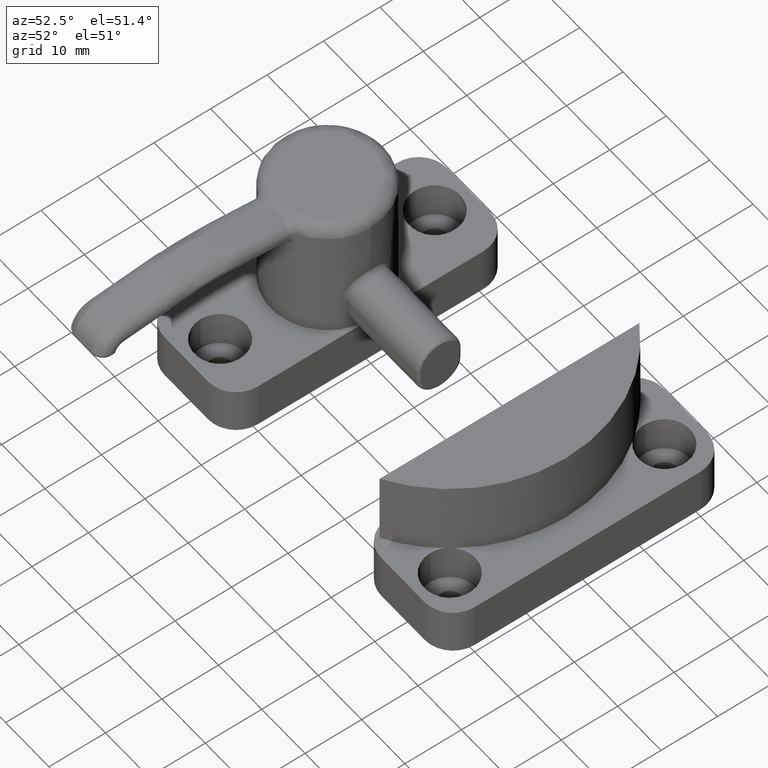
[diagram: clean part render]
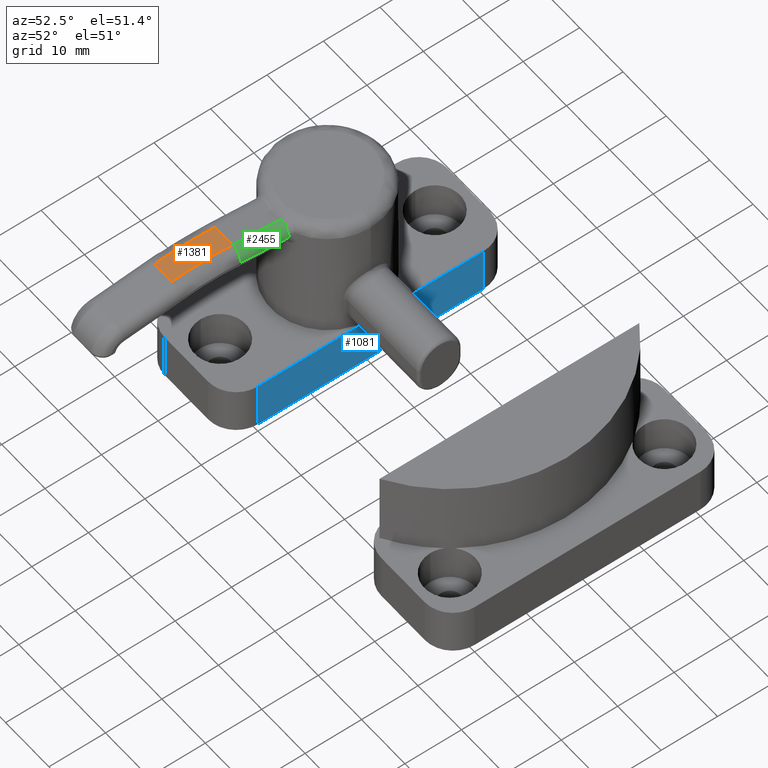
[diagram: same view with three faces highlighted in distinct colors, each labeled with its STEP entity id]
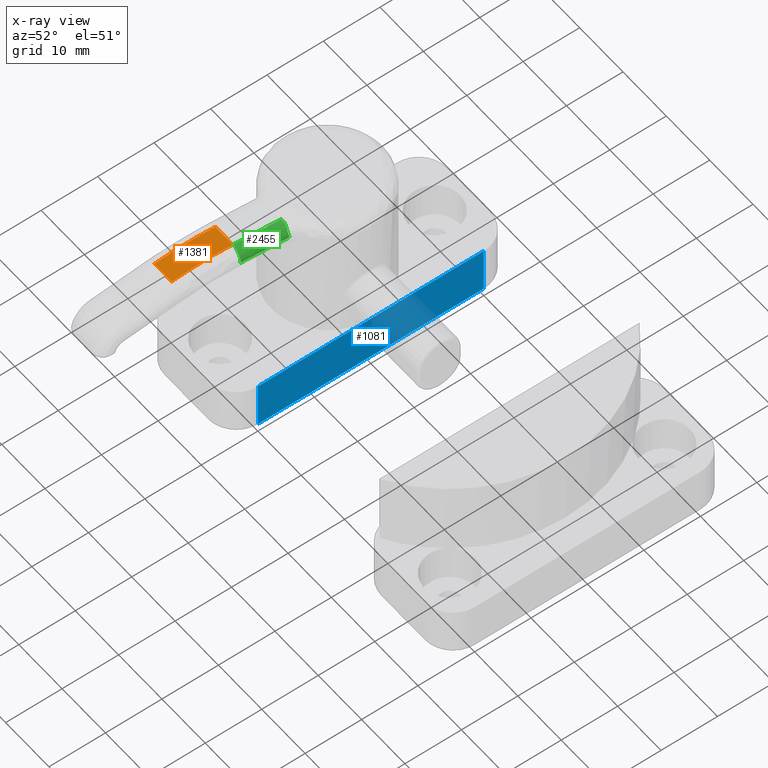
[diagram: x-ray of the same camera — body ghosted, the three highlighted faces saturated]
A machine part, auxiliary view with three faces highlighted in distinct colors.
The next image is the same camera in x-ray (body ghosted, the three faces saturated) — at least one of them is partly hidden behind the body in this view.
Their STEP definitions:

[orange] entity #1381 — the highlighted cylindrical surface (partial cylindrical patch) has radius 51.5 mm, axis along (-1, 0, 0).
#1340=CARTESIAN_POINT('',(12.000000009999912,-23.289700995617579,-20.063151708218605));
#1341=DIRECTION('',(-1.0,1.224647E-016,1.925930E-034));
#1342=DIRECTION('',(9.757211E-019,0.007967367278950,-0.999968260025608));
#1343=AXIS2_PLACEMENT_3D('',#1340,#1341,#1342);
#1344=CYLINDRICAL_SURFACE('',#1343,51.500000000000000);
#1345=CARTESIAN_POINT('',(11.999999999999911,-29.097492164159291,31.108320439283752));
#1346=VERTEX_POINT('',#1345);
#1347=CARTESIAN_POINT('',(7.999999999999911,-29.097492164159291,31.108320439283752));
#1348=VERTEX_POINT('',#1347);
#1349=CARTESIAN_POINT('',(11.999999999999911,-29.097492164159291,31.108320439283755));
#1350=DIRECTION('',(-1.0,0.0,0.0));
#1351=VECTOR('',#1350,4.0);
#1352=LINE('',#1349,#1351);
#1353=EDGE_CURVE('',#1346,#1348,#1352,.T.);
#1354=ORIENTED_EDGE('',*,*,#1353,.F.);
#1355=CARTESIAN_POINT('',(11.999999999999913,-18.298025116656817,31.194366490767614));
#1356=VERTEX_POINT('',#1355);
#1357=CARTESIAN_POINT('',(11.999999999999911,-23.289700995617579,-20.063151708218605));
#1358=DIRECTION('',(-1.0,1.224647E-016,-1.540744E-033));
#1359=DIRECTION('',(-1.381067E-017,-0.112772644049354,0.993620818398104));
#1360=AXIS2_PLACEMENT_3D('',#1357,#1358,#1359);
#1361=CIRCLE('',#1360,51.500000000000000);
#1362=EDGE_CURVE('',#1346,#1356,#1361,.T.);
#1363=ORIENTED_EDGE('',*,*,#1362,.T.);
#1364=CARTESIAN_POINT('',(7.999999999999912,-18.298025116656817,31.194366490767614));
#1365=VERTEX_POINT('',#1364);
#1366=CARTESIAN_POINT('',(11.999999999999913,-18.298025116656817,31.194366490767599));
#1367=DIRECTION('',(-1.0,0.0,0.0));
#1368=VECTOR('',#1367,4.0);
#1369=LINE('',#1366,#1368);
#1370=EDGE_CURVE('',#1356,#1365,#1369,.T.);
#1371=ORIENTED_EDGE('',*,*,#1370,.T.);
#1372=CARTESIAN_POINT('',(7.999999999999912,-23.289700995617579,-20.063151708218605));
#1373=DIRECTION('',(-1.0,1.224647E-016,-1.540744E-033));
#1374=DIRECTION('',(-1.381067E-017,-0.112772644049354,0.993620818398104));
#1375=AXIS2_PLACEMENT_3D('',#1372,#1373,#1374);
#1376=CIRCLE('',#1375,51.500000000000000);
#1377=EDGE_CURVE('',#1348,#1365,#1376,.T.);
#1378=ORIENTED_EDGE('',*,*,#1377,.F.);
#1379=EDGE_LOOP('',(#1354,#1363,#1371,#1378));
#1380=FACE_OUTER_BOUND('',#1379,.T.);
#1381=ADVANCED_FACE('',(#1380),#1344,.T.);

[blue] entity #1081 — the highlighted planar face has unit normal (-1, 0, 0).
#774=CARTESIAN_POINT('',(19.999999999999932,19.999999999999996,0.0));
#775=VERTEX_POINT('',#774);
#783=CARTESIAN_POINT('',(19.999999999999925,-20.000000000000004,0.0));
#784=VERTEX_POINT('',#783);
#785=CARTESIAN_POINT('',(19.999999999999925,-20.000000000000004,0.0));
#786=DIRECTION('',(0.0,1.0,0.0));
#787=VECTOR('',#786,40.0);
#788=LINE('',#785,#787);
#789=EDGE_CURVE('',#784,#775,#788,.T.);
#873=CARTESIAN_POINT('',(19.999999999999932,19.999999999999996,8.500000000000000));
#874=VERTEX_POINT('',#873);
#882=CARTESIAN_POINT('',(19.999999999999932,19.999999999999996,8.500000000000000));
#883=DIRECTION('',(0.0,0.0,-1.0));
#884=VECTOR('',#883,8.500000000000000);
#885=LINE('',#882,#884);
#886=EDGE_CURVE('',#874,#775,#885,.T.);
#930=CARTESIAN_POINT('',(19.999999999999925,-20.000000000000004,8.500000000000000));
#931=VERTEX_POINT('',#930);
#939=CARTESIAN_POINT('',(19.999999999999925,-20.000000000000004,8.500000000000000));
#940=DIRECTION('',(0.0,1.0,0.0));
#941=VECTOR('',#940,40.0);
#942=LINE('',#939,#941);
#943=EDGE_CURVE('',#931,#874,#942,.T.);
#1017=CARTESIAN_POINT('',(19.999999999999925,-20.000000000000004,8.500000000000000));
#1018=DIRECTION('',(0.0,0.0,-1.0));
#1019=VECTOR('',#1018,8.500000000000000);
#1020=LINE('',#1017,#1019);
#1021=EDGE_CURVE('',#931,#784,#1020,.T.);
#1070=CARTESIAN_POINT('',(19.999999999999925,-22.000000000000004,8.925000000000001));
#1071=DIRECTION('',(-1.0,0.0,0.0));
#1072=DIRECTION('',(0.0,1.0,0.0));
#1073=AXIS2_PLACEMENT_3D('',#1070,#1071,#1072);
#1074=PLANE('',#1073);
#1075=ORIENTED_EDGE('',*,*,#1021,.T.);
#1076=ORIENTED_EDGE('',*,*,#789,.T.);
#1077=ORIENTED_EDGE('',*,*,#886,.F.);
#1078=ORIENTED_EDGE('',*,*,#943,.F.);
#1079=EDGE_LOOP('',(#1075,#1076,#1077,#1078));
#1080=FACE_OUTER_BOUND('',#1079,.T.);
#1081=ADVANCED_FACE('',(#1080),#1074,.F.);

[green] entity #2455 — the highlighted cylindrical surface (edge-blend (fillet) strip) has radius 2 mm, axis along (0, 0.9953, -0.0969).
#1355=CARTESIAN_POINT('',(11.999999999999913,-18.298025116656817,31.194366490767614));
#1356=VERTEX_POINT('',#1355);
#1601=CARTESIAN_POINT('',(13.999999999999913,-18.491876607102000,29.203783259739033));
#1602=VERTEX_POINT('',#1601);
#1610=CARTESIAN_POINT('',(11.999999999999913,-18.491876607101943,29.203783259739023));
#1611=DIRECTION('',(-1.218881E-016,-0.995291615514295,0.096925745222539));
#1612=DIRECTION('',(5.934990E-018,0.096925745222539,0.995291615514295));
#1613=AXIS2_PLACEMENT_3D('',#1610,#1611,#1612);
#1614=CIRCLE('',#1613,2.000000000000004);
#1615=EDGE_CURVE('',#1602,#1356,#1614,.T.);
#2393=CARTESIAN_POINT('',(11.999999999999913,-9.747816666608687,30.361710701337749));
#2394=VERTEX_POINT('',#2393);
#2395=CARTESIAN_POINT('',(11.999999999999913,-18.298025116656817,31.194366490767599));
#2396=DIRECTION('',(2.067778E-016,0.995291615514295,-0.096925745222538));
#2397=VECTOR('',#2396,8.590656564136731);
#2398=LINE('',#2395,#2397);
#2399=EDGE_CURVE('',#1356,#2394,#2398,.T.);
#2416=CARTESIAN_POINT('',(11.999999999999899,-18.491876617054917,29.203783260708256));
#2417=DIRECTION('',(6.245005E-017,0.995291615514295,-0.096925745222539));
#2418=DIRECTION('',(-0.707106781186548,-0.068536851718417,-0.703777450588272));
#2419=AXIS2_PLACEMENT_3D('',#2416,#2417,#2418);
#2420=CYLINDRICAL_SURFACE('',#2419,2.000000000000001);
#2421=ORIENTED_EDGE('',*,*,#1615,.F.);
#2422=CARTESIAN_POINT('',(13.999999999999913,-9.797958971132774,28.357132456462381));
#2423=VERTEX_POINT('',#2422);
#2424=CARTESIAN_POINT('',(13.999999999999913,-18.491876607102000,29.203783259739005));
#2425=DIRECTION('',(2.033598E-016,0.995291615514295,-0.096925745222538));
#2426=VECTOR('',#2425,8.735045589102887);
#2427=LINE('',#2424,#2426);
#2428=EDGE_CURVE('',#1602,#2423,#2427,.T.);
#2429=ORIENTED_EDGE('',*,*,#2428,.T.);
#2430=CARTESIAN_POINT('',(13.954468222129433,-9.853077147905966,28.788835115575495));
#2431=VERTEX_POINT('',#2430);
#2432=CARTESIAN_POINT('',(13.954468222129433,-9.853077147905966,28.788835115575495));
#2433=CARTESIAN_POINT('',(13.967542440475112,-9.840322227557893,28.727087793731421));
#2434=CARTESIAN_POINT('',(13.991265529276715,-9.815521614673715,28.583930173808195));
#2435=CARTESIAN_POINT('',(13.999999999999913,-9.801881684210970,28.438840023677397));
#2436=CARTESIAN_POINT('',(13.999999999999913,-9.797958971132774,28.357132456462363));
#2437=B_SPLINE_CURVE_WITH_KNOTS('',3,(#2432,#2433,#2434,#2435,#2436),.UNSPECIFIED.,.F.,.U.,(4,1,4),(0.0,0.191309663254576,0.438782683348223),.UNSPECIFIED.);
#2438=EDGE_CURVE('',#2431,#2423,#2437,.T.);
#2439=ORIENTED_EDGE('',*,*,#2438,.F.);
#2440=CARTESIAN_POINT('',(11.999999999999913,-9.747816666608687,30.361710701337749));
#2441=CARTESIAN_POINT('',(12.141331947504368,-9.708809994868973,30.357912065171131));
#2442=CARTESIAN_POINT('',(12.387131437877001,-9.674998509220503,30.328446774374470));
#2443=CARTESIAN_POINT('',(12.750294115255086,-9.696827876810803,30.221164877530494));
#2444=CARTESIAN_POINT('',(13.090681314021067,-9.761256688966570,30.055189365487280));
#2445=CARTESIAN_POINT('',(13.433429901249225,-9.847892241565747,29.788539924517877));
#2446=CARTESIAN_POINT('',(13.764384097588986,-9.917623198628833,29.373852963793723));
#2447=CARTESIAN_POINT('',(13.907902344009427,-9.898505796155463,29.008757881679351));
#2448=CARTESIAN_POINT('',(13.954468222129433,-9.853077147905966,28.788835115575495));
#2449=B_SPLINE_CURVE_WITH_KNOTS('',3,(#2440,#2441,#2442,#2443,#2444,#2445,#2446,#2447,#2448),.UNSPECIFIED.,.F.,.U.,(4,1,1,1,1,1,4),(0.0,0.433082232478167,0.741965944148488,1.138257908585478,1.579772587996014,2.061530121814271,2.736246223210085),.UNSPECIFIED.);
#2450=EDGE_CURVE('',#2394,#2431,#2449,.T.);
#2451=ORIENTED_EDGE('',*,*,#2450,.F.);
#2452=ORIENTED_EDGE('',*,*,#2399,.F.);
#2453=EDGE_LOOP('',(#2421,#2429,#2439,#2451,#2452));
#2454=FACE_OUTER_BOUND('',#2453,.T.);
#2455=ADVANCED_FACE('',(#2454),#2420,.T.);